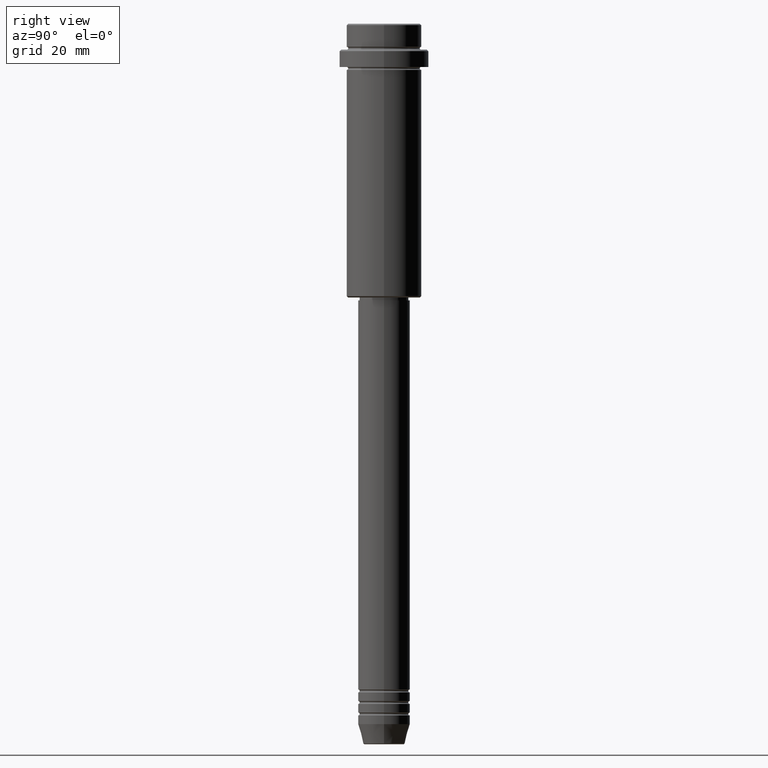
[diagram: clean part render]
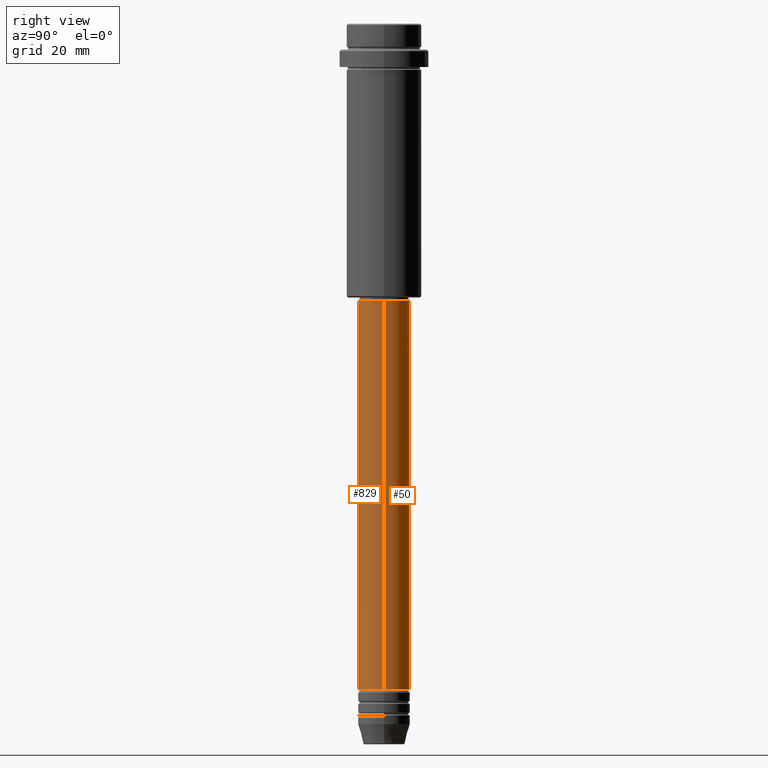
[diagram: same view with one multi-face feature highlighted, each face labeled with its STEP entity id]
A machine part, right view. The highlighted faces form ONE feature: a constant-radius fillet chain: 2 tangent blend faces with common blend radius 9 mm. The faces share edges in the B-rep.
Their STEP definitions:
[1] entity #829 (Cylinder):
#34 = CARTESIAN_POINT ( 'NONE',  ( 9.000000000000001776, 0.000000000000000000, 0.000000000000000000 ) ) ;
#101 = DIRECTION ( 'NONE',  ( 1.000000000000000000, 0.000000000000000000, 0.000000000000000000 ) ) ;
#106 = FACE_OUTER_BOUND ( 'NONE', #1022, .T. ) ;
#111 = EDGE_CURVE ( 'NONE', #1293, #547, #966, .T. ) ;
#211 = DIRECTION ( 'NONE',  ( -0.000000000000000000, -0.000000000000000000, 1.000000000000000000 ) ) ;
#213 = VECTOR ( 'NONE', #775, 1000.000000000000000 ) ;
#237 = CARTESIAN_POINT ( 'NONE',  ( 9.000000000000001776, 0.000000000000000000, -96.00000000000000000 ) ) ;
#283 = AXIS2_PLACEMENT_3D ( 'NONE', #1104, #686, #890 ) ;
#324 = DIRECTION ( 'NONE',  ( -0.000000000000000000, -0.000000000000000000, 1.000000000000000000 ) ) ;
#478 = EDGE_CURVE ( 'NONE', #579, #1328, #1019, .T. ) ;
#547 = VERTEX_POINT ( 'NONE', #1065 ) ;
#579 = VERTEX_POINT ( 'NONE', #1364 ) ;
#590 = CARTESIAN_POINT ( 'NONE',  ( -9.000000000000000000, 1.102182119232617714E-15, -230.9999999999998863 ) ) ;
#662 = CARTESIAN_POINT ( 'NONE',  ( -9.000000000000001776, 1.102182119232617911E-15, 0.000000000000000000 ) ) ;
#683 = DIRECTION ( 'NONE',  ( -0.000000000000000000, -0.000000000000000000, 1.000000000000000000 ) ) ;
#686 = DIRECTION ( 'NONE',  ( -0.000000000000000000, -0.000000000000000000, 1.000000000000000000 ) ) ;
#705 = ORIENTED_EDGE ( 'NONE', *, *, #1205, .T. ) ;
#743 = VECTOR ( 'NONE', #683, 1000.000000000000000 ) ;
#758 = CARTESIAN_POINT ( 'NONE',  ( 0.000000000000000000, 0.000000000000000000, 0.000000000000000000 ) ) ;
#775 = DIRECTION ( 'NONE',  ( -0.000000000000000000, -0.000000000000000000, 1.000000000000000000 ) ) ;
#829 = ADVANCED_FACE ( 'NONE', ( #106 ), #1301, .T. ) ;
#890 = DIRECTION ( 'NONE',  ( 1.000000000000000000, 0.000000000000000000, 0.000000000000000000 ) ) ;
#905 = ORIENTED_EDGE ( 'NONE', *, *, #478, .T. ) ;
#951 = AXIS2_PLACEMENT_3D ( 'NONE', #758, #211, #101 ) ;
#966 = LINE ( 'NONE', #662, #213 ) ;
#986 = CIRCLE ( 'NONE', #1309, 9.000000000000000000 ) ;
#1019 = LINE ( 'NONE', #34, #743 ) ;
#1022 = EDGE_LOOP ( 'NONE', ( #1152, #705, #905, #1161 ) ) ;
#1058 = CIRCLE ( 'NONE', #283, 9.000000000000001776 ) ;
#1065 = CARTESIAN_POINT ( 'NONE',  ( -9.000000000000001776, 1.102182119232617911E-15, -96.00000000000000000 ) ) ;
#1089 = DIRECTION ( 'NONE',  ( 1.000000000000000000, 0.000000000000000000, 0.000000000000000000 ) ) ;
#1104 = CARTESIAN_POINT ( 'NONE',  ( 0.000000000000000000, 0.000000000000000000, -96.00000000000000000 ) ) ;
#1152 = ORIENTED_EDGE ( 'NONE', *, *, #111, .F. ) ;
#1161 = ORIENTED_EDGE ( 'NONE', *, *, #1363, .F. ) ;
#1205 = EDGE_CURVE ( 'NONE', #1293, #579, #986, .T. ) ;
#1293 = VERTEX_POINT ( 'NONE', #590 ) ;
#1301 = CYLINDRICAL_SURFACE ( 'NONE', #951, 9.000000000000001776 ) ;
#1305 = CARTESIAN_POINT ( 'NONE',  ( 0.000000000000000000, 0.000000000000000000, -230.9999999999998863 ) ) ;
#1309 = AXIS2_PLACEMENT_3D ( 'NONE', #1305, #324, #1089 ) ;
#1328 = VERTEX_POINT ( 'NONE', #237 ) ;
#1363 = EDGE_CURVE ( 'NONE', #547, #1328, #1058, .T. ) ;
#1364 = CARTESIAN_POINT ( 'NONE',  ( 9.000000000000000000, 0.000000000000000000, -230.9999999999998863 ) ) ;
[2] entity #50 (Cylinder):
#34 = CARTESIAN_POINT ( 'NONE',  ( 9.000000000000001776, 0.000000000000000000, 0.000000000000000000 ) ) ;
#50 = ADVANCED_FACE ( 'NONE', ( #406 ), #51, .T. ) ;
#51 = CYLINDRICAL_SURFACE ( 'NONE', #602, 9.000000000000001776 ) ;
#63 = DIRECTION ( 'NONE',  ( 1.000000000000000000, 0.000000000000000000, 0.000000000000000000 ) ) ;
#79 = ORIENTED_EDGE ( 'NONE', *, *, #111, .T. ) ;
#98 = ORIENTED_EDGE ( 'NONE', *, *, #357, .T. ) ;
#111 = EDGE_CURVE ( 'NONE', #1293, #547, #966, .T. ) ;
#113 = CIRCLE ( 'NONE', #403, 9.000000000000000000 ) ;
#157 = DIRECTION ( 'NONE',  ( 1.000000000000000000, 0.000000000000000000, 0.000000000000000000 ) ) ;
#165 = DIRECTION ( 'NONE',  ( -0.000000000000000000, -0.000000000000000000, 1.000000000000000000 ) ) ;
#213 = VECTOR ( 'NONE', #775, 1000.000000000000000 ) ;
#237 = CARTESIAN_POINT ( 'NONE',  ( 9.000000000000001776, 0.000000000000000000, -96.00000000000000000 ) ) ;
#305 = CIRCLE ( 'NONE', #1285, 9.000000000000001776 ) ;
#357 = EDGE_CURVE ( 'NONE', #579, #1293, #113, .T. ) ;
#386 = DIRECTION ( 'NONE',  ( -0.000000000000000000, -0.000000000000000000, 1.000000000000000000 ) ) ;
#403 = AXIS2_PLACEMENT_3D ( 'NONE', #736, #165, #1156 ) ;
#406 = FACE_OUTER_BOUND ( 'NONE', #618, .T. ) ;
#478 = EDGE_CURVE ( 'NONE', #579, #1328, #1019, .T. ) ;
#547 = VERTEX_POINT ( 'NONE', #1065 ) ;
#579 = VERTEX_POINT ( 'NONE', #1364 ) ;
#590 = CARTESIAN_POINT ( 'NONE',  ( -9.000000000000000000, 1.102182119232617714E-15, -230.9999999999998863 ) ) ;
#602 = AXIS2_PLACEMENT_3D ( 'NONE', #1147, #386, #63 ) ;
#618 = EDGE_LOOP ( 'NONE', ( #98, #79, #727, #993 ) ) ;
#662 = CARTESIAN_POINT ( 'NONE',  ( -9.000000000000001776, 1.102182119232617911E-15, 0.000000000000000000 ) ) ;
#683 = DIRECTION ( 'NONE',  ( -0.000000000000000000, -0.000000000000000000, 1.000000000000000000 ) ) ;
#727 = ORIENTED_EDGE ( 'NONE', *, *, #980, .F. ) ;
#736 = CARTESIAN_POINT ( 'NONE',  ( 0.000000000000000000, 0.000000000000000000, -230.9999999999998863 ) ) ;
#743 = VECTOR ( 'NONE', #683, 1000.000000000000000 ) ;
#775 = DIRECTION ( 'NONE',  ( -0.000000000000000000, -0.000000000000000000, 1.000000000000000000 ) ) ;
#966 = LINE ( 'NONE', #662, #213 ) ;
#980 = EDGE_CURVE ( 'NONE', #1328, #547, #305, .T. ) ;
#993 = ORIENTED_EDGE ( 'NONE', *, *, #478, .F. ) ;
#1019 = LINE ( 'NONE', #34, #743 ) ;
#1065 = CARTESIAN_POINT ( 'NONE',  ( -9.000000000000001776, 1.102182119232617911E-15, -96.00000000000000000 ) ) ;
#1147 = CARTESIAN_POINT ( 'NONE',  ( 0.000000000000000000, 0.000000000000000000, 0.000000000000000000 ) ) ;
#1156 = DIRECTION ( 'NONE',  ( 1.000000000000000000, 0.000000000000000000, 0.000000000000000000 ) ) ;
#1263 = DIRECTION ( 'NONE',  ( -0.000000000000000000, -0.000000000000000000, 1.000000000000000000 ) ) ;
#1284 = CARTESIAN_POINT ( 'NONE',  ( 0.000000000000000000, 0.000000000000000000, -96.00000000000000000 ) ) ;
#1285 = AXIS2_PLACEMENT_3D ( 'NONE', #1284, #1263, #157 ) ;
#1293 = VERTEX_POINT ( 'NONE', #590 ) ;
#1328 = VERTEX_POINT ( 'NONE', #237 ) ;
#1364 = CARTESIAN_POINT ( 'NONE',  ( 9.000000000000000000, 0.000000000000000000, -230.9999999999998863 ) ) ;